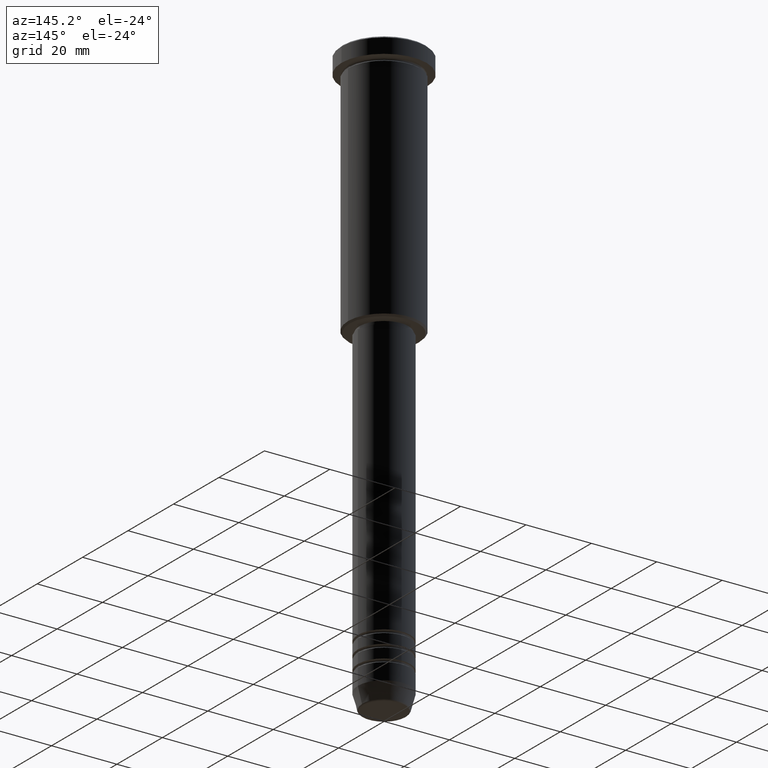
[diagram: clean part render]
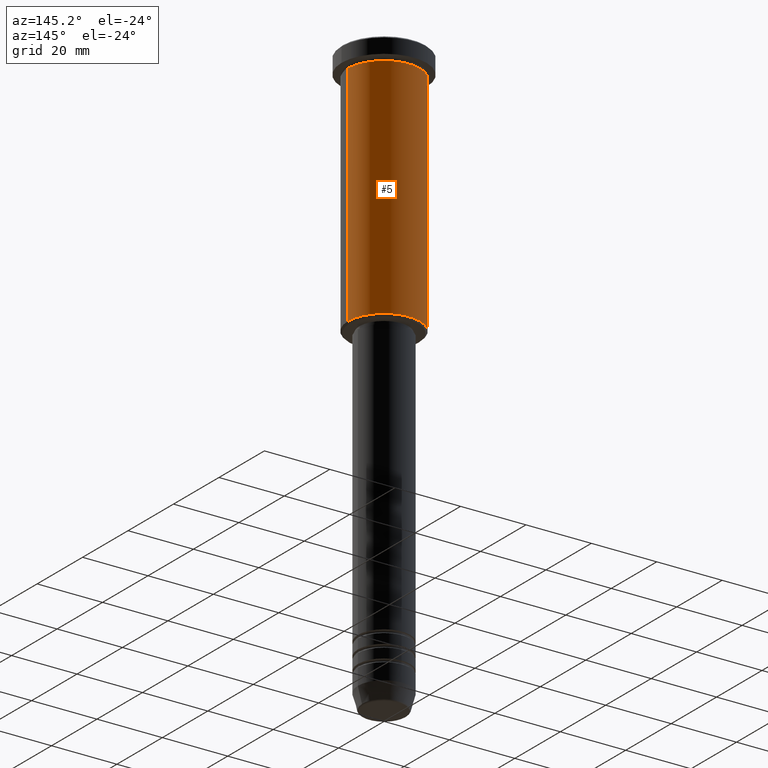
[diagram: same view with one face highlighted and labeled with its STEP entity id]
A machine part, auxiliary view. The second image highlights one B-rep face of the part: STEP entity #5.
In plain terms, the highlighted cylindrical surface (partial cylindrical patch) has radius 11 mm, axis along (-0, -0, 1).
Its self-contained STEP definition (entity closure, byte-faithful):
#5 = ADVANCED_FACE ( 'NONE', ( #985 ), #1074, .T. ) ;
#117 = DIRECTION ( 'NONE',  ( 1.000000000000000000, 0.000000000000000000, 0.000000000000000000 ) ) ;
#141 = CARTESIAN_POINT ( 'NONE',  ( -11.00000000000000000, 1.347111479062088405E-15, -5.999999999999999112 ) ) ;
#150 = AXIS2_PLACEMENT_3D ( 'NONE', #612, #979, #532 ) ;
#236 = EDGE_LOOP ( 'NONE', ( #566, #588, #929, #1056 ) ) ;
#277 = CARTESIAN_POINT ( 'NONE',  ( 0.000000000000000000, 0.000000000000000000, -75.49999999999995737 ) ) ;
#310 = CIRCLE ( 'NONE', #747, 11.00000000000000000 ) ;
#311 = VECTOR ( 'NONE', #854, 1000.000000000000000 ) ;
#319 = DIRECTION ( 'NONE',  ( -0.000000000000000000, -0.000000000000000000, 1.000000000000000000 ) ) ;
#380 = CARTESIAN_POINT ( 'NONE',  ( 11.00000000000000000, 0.000000000000000000, -5.999999999999999112 ) ) ;
#381 = VERTEX_POINT ( 'NONE', #1129 ) ;
#382 = EDGE_CURVE ( 'NONE', #634, #473, #591, .T. ) ;
#398 = EDGE_CURVE ( 'NONE', #634, #381, #310, .T. ) ;
#416 = LINE ( 'NONE', #1138, #311 ) ;
#471 = DIRECTION ( 'NONE',  ( -0.000000000000000000, -0.000000000000000000, 1.000000000000000000 ) ) ;
#473 = VERTEX_POINT ( 'NONE', #380 ) ;
#475 = EDGE_CURVE ( 'NONE', #473, #1101, #1171, .T. ) ;
#532 = DIRECTION ( 'NONE',  ( 1.000000000000000000, 0.000000000000000000, 0.000000000000000000 ) ) ;
#566 = ORIENTED_EDGE ( 'NONE', *, *, #398, .T. ) ;
#585 = CARTESIAN_POINT ( 'NONE',  ( 11.00000000000000000, 0.000000000000000000, 0.000000000000000000 ) ) ;
#588 = ORIENTED_EDGE ( 'NONE', *, *, #862, .T. ) ;
#591 = LINE ( 'NONE', #585, #902 ) ;
#612 = CARTESIAN_POINT ( 'NONE',  ( 0.000000000000000000, 0.000000000000000000, 0.000000000000000000 ) ) ;
#634 = VERTEX_POINT ( 'NONE', #1068 ) ;
#676 = DIRECTION ( 'NONE',  ( -0.000000000000000000, -0.000000000000000000, 1.000000000000000000 ) ) ;
#740 = CARTESIAN_POINT ( 'NONE',  ( 0.000000000000000000, 0.000000000000000000, -5.999999999999999112 ) ) ;
#747 = AXIS2_PLACEMENT_3D ( 'NONE', #277, #471, #828 ) ;
#828 = DIRECTION ( 'NONE',  ( -1.000000000000000000, 0.000000000000000000, 0.000000000000000000 ) ) ;
#854 = DIRECTION ( 'NONE',  ( -0.000000000000000000, -0.000000000000000000, 1.000000000000000000 ) ) ;
#862 = EDGE_CURVE ( 'NONE', #381, #1101, #416, .T. ) ;
#902 = VECTOR ( 'NONE', #319, 1000.000000000000000 ) ;
#929 = ORIENTED_EDGE ( 'NONE', *, *, #475, .F. ) ;
#979 = DIRECTION ( 'NONE',  ( -0.000000000000000000, -0.000000000000000000, 1.000000000000000000 ) ) ;
#985 = FACE_OUTER_BOUND ( 'NONE', #236, .T. ) ;
#1056 = ORIENTED_EDGE ( 'NONE', *, *, #382, .F. ) ;
#1068 = CARTESIAN_POINT ( 'NONE',  ( 11.00000000000000000, 0.000000000000000000, -75.49999999999995737 ) ) ;
#1074 = CYLINDRICAL_SURFACE ( 'NONE', #150, 11.00000000000000000 ) ;
#1079 = AXIS2_PLACEMENT_3D ( 'NONE', #740, #676, #117 ) ;
#1101 = VERTEX_POINT ( 'NONE', #141 ) ;
#1129 = CARTESIAN_POINT ( 'NONE',  ( -11.00000000000000000, 1.347111479062088405E-15, -75.49999999999995737 ) ) ;
#1138 = CARTESIAN_POINT ( 'NONE',  ( -11.00000000000000000, 1.347111479062088405E-15, 0.000000000000000000 ) ) ;
#1171 = CIRCLE ( 'NONE', #1079, 11.00000000000000000 ) ;